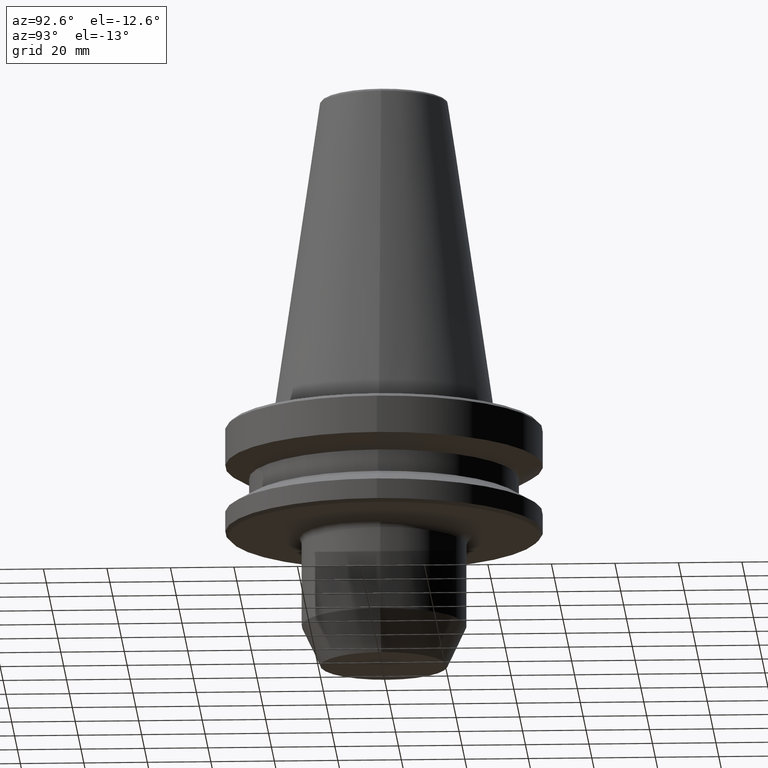
[diagram: clean part render]
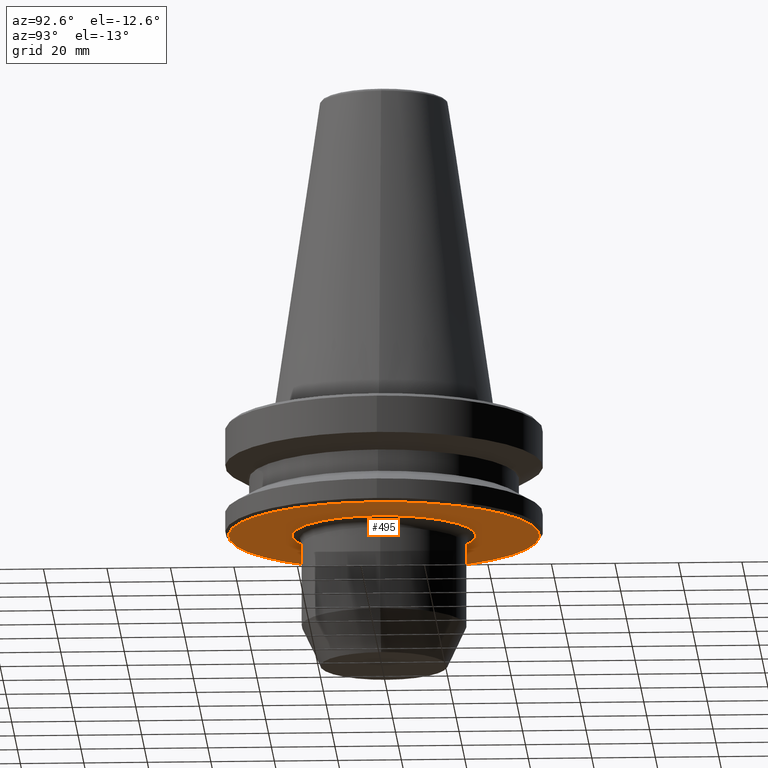
[diagram: same view with one face highlighted and labeled with its STEP entity id]
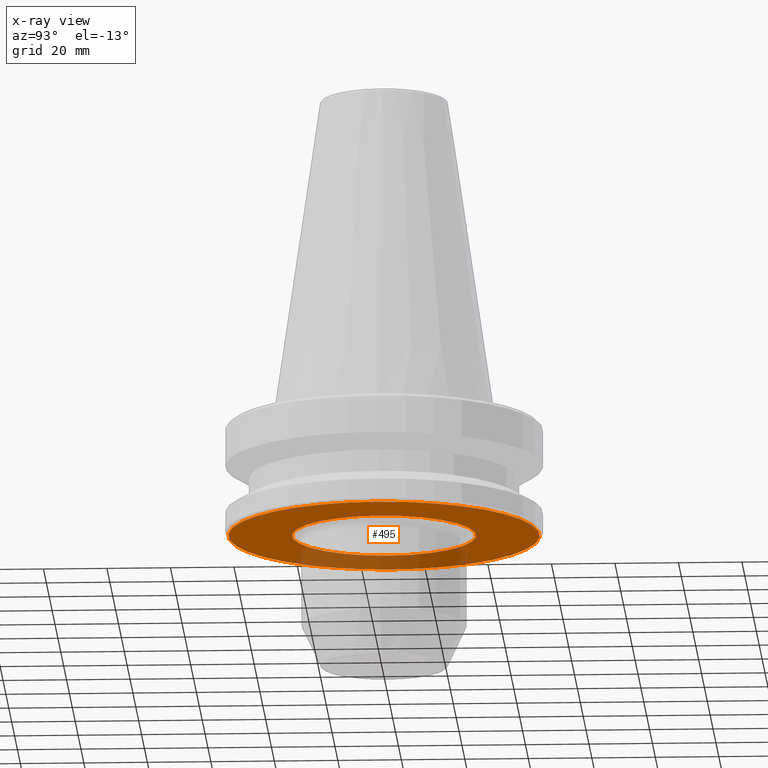
[diagram: x-ray of the same camera — body ghosted, the highlighted face saturated]
A machine part, auxiliary view. The second image highlights one B-rep face of the part: STEP entity #495.
The next image is the same camera in x-ray: the body ghosted, the highlighted face saturated — about 23% of this face is hidden behind the body in this view.
In plain terms, the highlighted planar face has unit normal (0, -0, 1).
Its self-contained STEP definition (entity closure, byte-faithful):
#5 = CARTESIAN_POINT ( 'NONE',  ( -48.99999999999970900, 6.062001655779363000E-015, -38.00000000000182600 ) ) ;
#20 = DIRECTION ( 'NONE',  ( 1.000000000000000000, 0.0000000000000000000, 0.0000000000000000000 ) ) ;
#63 = EDGE_CURVE ( 'NONE', #701, #862, #782, .T. ) ;
#65 = FACE_BOUND ( 'NONE', #69, .T. ) ;
#69 = EDGE_LOOP ( 'NONE', ( #328, #973 ) ) ;
#73 = FACE_OUTER_BOUND ( 'NONE', #200, .T. ) ;
#78 = DIRECTION ( 'NONE',  ( 1.000000000000000000, 0.0000000000000000000, 0.0000000000000000000 ) ) ;
#94 = VERTEX_POINT ( 'NONE', #5 ) ;
#129 = AXIS2_PLACEMENT_3D ( 'NONE', #903, #596, #577 ) ;
#147 = EDGE_CURVE ( 'NONE', #862, #701, #681, .T. ) ;
#165 = CARTESIAN_POINT ( 'NONE',  ( 0.0000000000000000000, 0.0000000000000000000, -38.00000000000188300 ) ) ;
#174 = DIRECTION ( 'NONE',  ( -0.0000000000000000000, -0.0000000000000000000, 1.000000000000000000 ) ) ;
#181 = EDGE_CURVE ( 'NONE', #94, #925, #472, .T. ) ;
#200 = EDGE_LOOP ( 'NONE', ( #599, #291 ) ) ;
#244 = CARTESIAN_POINT ( 'NONE',  ( 0.0000000000000000000, 0.0000000000000000000, -38.00000000000182600 ) ) ;
#291 = ORIENTED_EDGE ( 'NONE', *, *, #181, .F. ) ;
#328 = ORIENTED_EDGE ( 'NONE', *, *, #63, .T. ) ;
#339 = DIRECTION ( 'NONE',  ( -0.0000000000000000000, -0.0000000000000000000, 1.000000000000000000 ) ) ;
#379 = CARTESIAN_POINT ( 'NONE',  ( -28.99999999999769400, 3.551475717527042000E-015, -38.00000000000187600 ) ) ;
#415 = AXIS2_PLACEMENT_3D ( 'NONE', #165, #607, #434 ) ;
#429 = AXIS2_PLACEMENT_3D ( 'NONE', #464, #517, #78 ) ;
#434 = DIRECTION ( 'NONE',  ( 1.000000000000000000, 0.0000000000000000000, 0.0000000000000000000 ) ) ;
#464 = CARTESIAN_POINT ( 'NONE',  ( 0.0000000000000000000, 48.99999999999970900, -38.00000000000184000 ) ) ;
#472 = CIRCLE ( 'NONE', #808, 48.99999999999970900 ) ;
#495 = ADVANCED_FACE ( 'NONE', ( #73, #65 ), #548, .F. ) ;
#517 = DIRECTION ( 'NONE',  ( 0.0000000000000000000, -0.0000000000000000000, 1.000000000000000000 ) ) ;
#525 = AXIS2_PLACEMENT_3D ( 'NONE', #863, #339, #542 ) ;
#542 = DIRECTION ( 'NONE',  ( 1.000000000000000000, 0.0000000000000000000, 0.0000000000000000000 ) ) ;
#548 = PLANE ( 'NONE',  #429 ) ;
#577 = DIRECTION ( 'NONE',  ( 1.000000000000000000, 0.0000000000000000000, 0.0000000000000000000 ) ) ;
#596 = DIRECTION ( 'NONE',  ( -0.0000000000000000000, -0.0000000000000000000, 1.000000000000000000 ) ) ;
#599 = ORIENTED_EDGE ( 'NONE', *, *, #941, .F. ) ;
#607 = DIRECTION ( 'NONE',  ( -0.0000000000000000000, -0.0000000000000000000, 1.000000000000000000 ) ) ;
#662 = CIRCLE ( 'NONE', #525, 48.99999999999970900 ) ;
#672 = CARTESIAN_POINT ( 'NONE',  ( 28.99999999999769400, 0.0000000000000000000, -38.00000000000187600 ) ) ;
#681 = CIRCLE ( 'NONE', #129, 28.99999999999769400 ) ;
#701 = VERTEX_POINT ( 'NONE', #672 ) ;
#773 = CARTESIAN_POINT ( 'NONE',  ( 48.99999999999970900, 0.0000000000000000000, -38.00000000000182600 ) ) ;
#782 = CIRCLE ( 'NONE', #415, 28.99999999999769400 ) ;
#808 = AXIS2_PLACEMENT_3D ( 'NONE', #244, #174, #20 ) ;
#862 = VERTEX_POINT ( 'NONE', #379 ) ;
#863 = CARTESIAN_POINT ( 'NONE',  ( 0.0000000000000000000, 0.0000000000000000000, -38.00000000000182600 ) ) ;
#903 = CARTESIAN_POINT ( 'NONE',  ( 0.0000000000000000000, 0.0000000000000000000, -38.00000000000188300 ) ) ;
#925 = VERTEX_POINT ( 'NONE', #773 ) ;
#941 = EDGE_CURVE ( 'NONE', #925, #94, #662, .T. ) ;
#973 = ORIENTED_EDGE ( 'NONE', *, *, #147, .T. ) ;